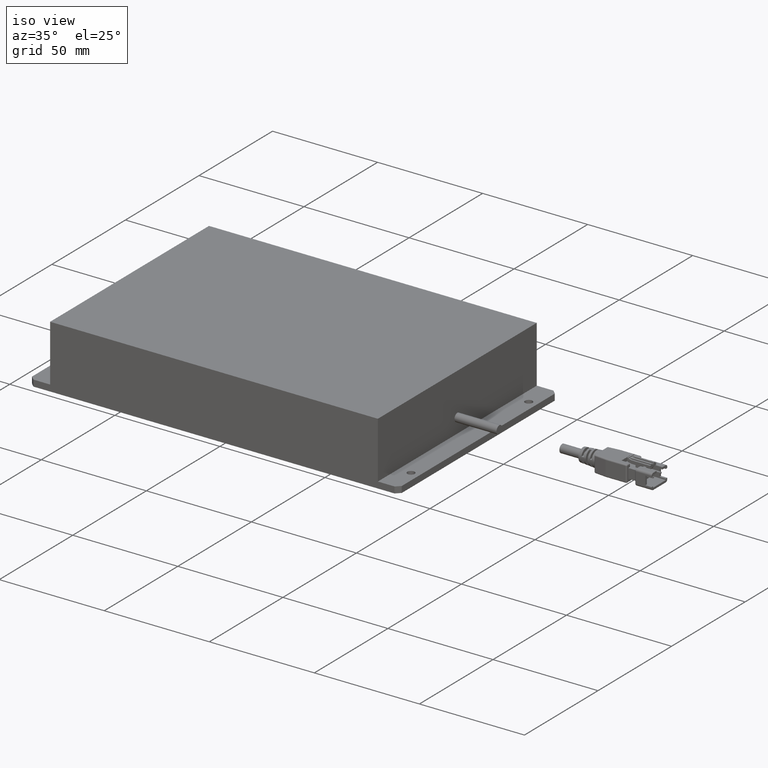
[diagram: clean part render]
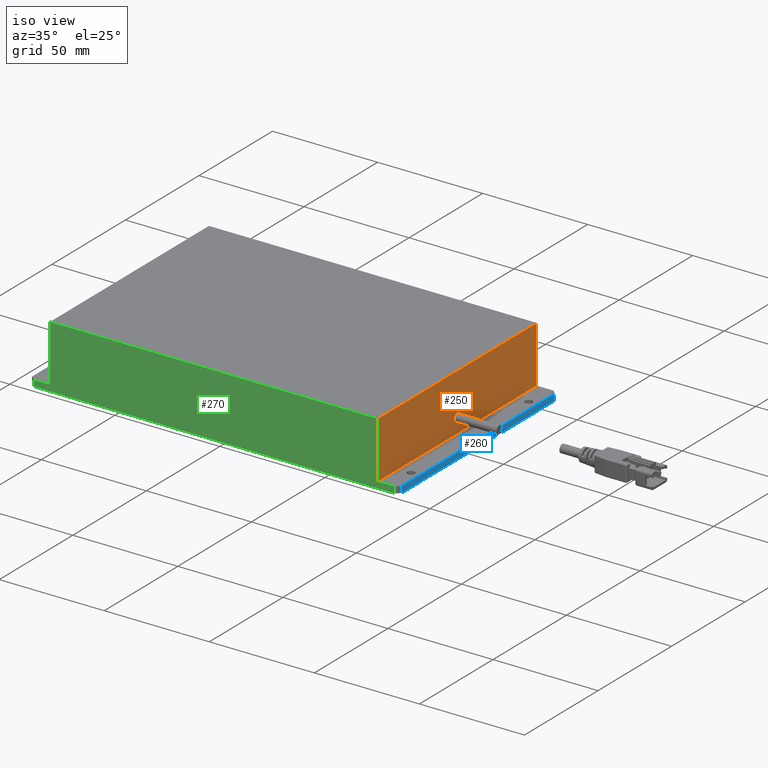
[diagram: same view with three faces highlighted in distinct colors, each labeled with its STEP entity id]
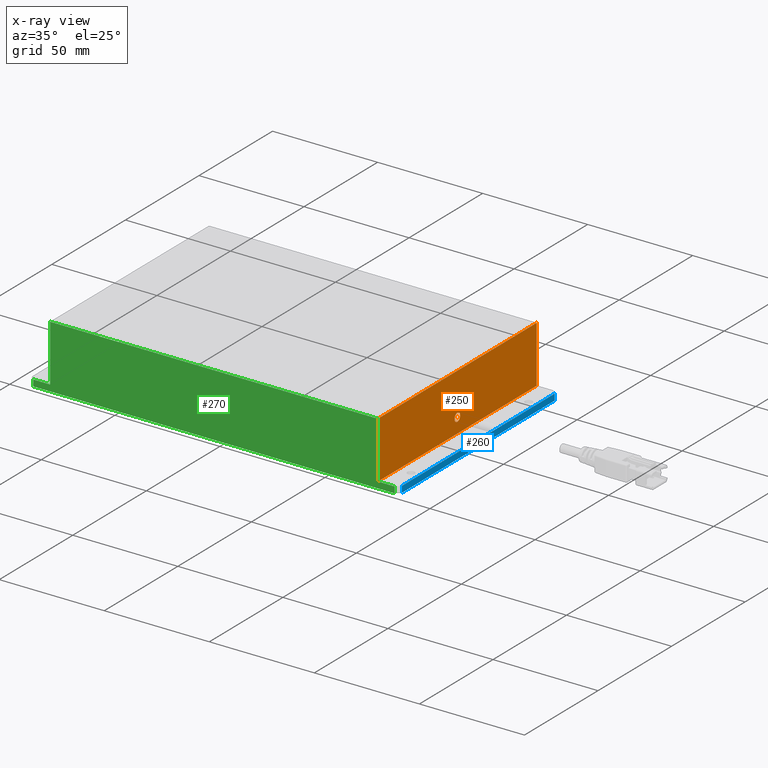
[diagram: x-ray of the same camera — body ghosted, the three highlighted faces saturated]
A machine part, iso view with three faces highlighted in distinct colors.
The next image is the same camera in x-ray (body ghosted, the three faces saturated) — at least one of them is partly hidden behind the body in this view.
Their STEP definitions:

[orange] entity #250 — the highlighted planar face has unit normal (-1, 0, 0).
#250=ADVANCED_FACE('0:8843',(#638,#639),#640,.F.);
#638=FACE_BOUND('',#1201,.T.);
#639=FACE_OUTER_BOUND('',#1202,.T.);
#640=PLANE('',#1203);
#1201=EDGE_LOOP('',(#2132));
#1202=EDGE_LOOP('',(#2133,#2134,#2135,#2136));
#1203=AXIS2_PLACEMENT_3D('',#2137,#2138,#2139);
#2132=ORIENTED_EDGE('',*,*,#3695,.F.);
#2133=ORIENTED_EDGE('',*,*,#3696,.F.);
#2134=ORIENTED_EDGE('',*,*,#3697,.F.);
#2135=ORIENTED_EDGE('',*,*,#3698,.T.);
#2136=ORIENTED_EDGE('',*,*,#3699,.T.);
#2137=CARTESIAN_POINT('',(0.078,0.054,0.003));
#2138=DIRECTION('',(-1.0,0.0,0.0));
#2139=DIRECTION('',(0.0,-1.0,0.0));
#3695=EDGE_CURVE('0:8897',#4309,#4309,#4310,.T.);
#3696=EDGE_CURVE('0:8918',#4311,#4312,#4313,.T.);
#3697=EDGE_CURVE('0:8906',#4314,#4311,#4315,.T.);
#3698=EDGE_CURVE('0:8915',#4314,#4316,#4317,.T.);
#3699=EDGE_CURVE('0:8909',#4316,#4312,#4318,.F.);
#4309=VERTEX_POINT('',#5208);
#4310=CIRCLE('',#5209,0.00195);
#4311=VERTEX_POINT('',#5210);
#4312=VERTEX_POINT('',#5211);
#4313=LINE('',#5212,#5213);
#4314=VERTEX_POINT('',#5214);
#4315=LINE('',#5215,#5216);
#4316=VERTEX_POINT('',#5217);
#4317=LINE('',#5218,#5219);
#4318=LINE('',#5220,#5221);
#5208=CARTESIAN_POINT('',(0.078,0.00195,0.01));
#5209=AXIS2_PLACEMENT_3D('',#6559,#6560,#6561);
#5210=CARTESIAN_POINT('',(0.078,0.054,0.003));
#5211=CARTESIAN_POINT('',(0.078,-0.054,0.003));
#5212=CARTESIAN_POINT('',(0.078,0.054,0.003));
#5213=VECTOR('',#6562,1.0);
#5214=CARTESIAN_POINT('',(0.078,0.054,0.03));
#5215=CARTESIAN_POINT('',(0.078,0.054,0.003));
#5216=VECTOR('',#6563,1.0);
#5217=CARTESIAN_POINT('',(0.078,-0.054,0.03));
#5218=CARTESIAN_POINT('',(0.078,0.0,0.03));
#5219=VECTOR('',#6564,1.0);
#5220=CARTESIAN_POINT('',(0.078,-0.054,0.003));
#5221=VECTOR('',#6565,1.0);
#6559=CARTESIAN_POINT('',(0.078,8.57224447675664E-19,0.01));
#6560=DIRECTION('',(1.0,0.0,-0.0));
#6561=DIRECTION('',(-0.0,1.0,0.0));
#6562=DIRECTION('',(0.0,-1.0,0.0));
#6563=DIRECTION('',(0.0,-0.0,-1.0));
#6564=DIRECTION('',(0.0,-1.0,0.0));
#6565=DIRECTION('',(0.0,0.0,1.0));

[blue] entity #260 — the highlighted planar face has unit normal (1, 0, 0).
#260=ADVANCED_FACE('0:8858',(#655),#656,.T.);
#655=FACE_OUTER_BOUND('',#1218,.T.);
#656=PLANE('',#1219);
#1218=EDGE_LOOP('',(#2168,#2169,#2170,#2171));
#1219=AXIS2_PLACEMENT_3D('',#2172,#2173,#2174);
#2168=ORIENTED_EDGE('',*,*,#3712,.T.);
#2169=ORIENTED_EDGE('',*,*,#3713,.T.);
#2170=ORIENTED_EDGE('',*,*,#3714,.F.);
#2171=ORIENTED_EDGE('',*,*,#3715,.T.);
#2172=CARTESIAN_POINT('',(0.088,0.054,0.0));
#2173=DIRECTION('',(1.0,0.0,-0.0));
#2174=DIRECTION('',(-0.0,0.0,-1.0));
#3712=EDGE_CURVE('0:9005',#4336,#4337,#4338,.F.);
#3713=EDGE_CURVE('0:8933',#4337,#4339,#4340,.T.);
#3714=EDGE_CURVE('0:8993',#4341,#4339,#4342,.F.);
#3715=EDGE_CURVE('0:8939',#4341,#4336,#4343,.T.);
#4336=VERTEX_POINT('',#5245);
#4337=VERTEX_POINT('',#5246);
#4338=LINE('',#5247,#5248);
#4339=VERTEX_POINT('',#5249);
#4340=LINE('',#5250,#5251);
#4341=VERTEX_POINT('',#5252);
#4342=LINE('',#5253,#5254);
#4343=LINE('',#5255,#5256);
#5245=CARTESIAN_POINT('',(0.088,-0.052,0.0));
#5246=CARTESIAN_POINT('',(0.088,0.052,0.0));
#5247=CARTESIAN_POINT('',(0.088,0.054,0.0));
#5248=VECTOR('',#6575,1.0);
#5249=CARTESIAN_POINT('',(0.088,0.052,0.003));
#5250=CARTESIAN_POINT('',(0.088,0.052,0.0));
#5251=VECTOR('',#6576,1.0);
#5252=CARTESIAN_POINT('',(0.088,-0.052,0.003));
#5253=CARTESIAN_POINT('',(0.088,0.054,0.003));
#5254=VECTOR('',#6577,1.0);
#5255=CARTESIAN_POINT('',(0.088,-0.052,0.0));
#5256=VECTOR('',#6578,1.0);
#6575=DIRECTION('',(0.0,-1.0,0.0));
#6576=DIRECTION('',(0.0,0.0,1.0));
#6577=DIRECTION('',(0.0,-1.0,0.0));
#6578=DIRECTION('',(0.0,0.0,-1.0));

[green] entity #270 — the highlighted planar face has unit normal (0, -1, 0).
#270=ADVANCED_FACE('0:8867',(#676),#677,.T.);
#676=FACE_OUTER_BOUND('',#1239,.T.);
#677=PLANE('',#1240);
#1239=EDGE_LOOP('',(#2220,#2221,#2222,#2223,#2224,#2225,#2226,#2227));
#1240=AXIS2_PLACEMENT_3D('',#2228,#2229,#2230);
#2220=ORIENTED_EDGE('',*,*,#3724,.T.);
#2221=ORIENTED_EDGE('',*,*,#3743,.T.);
#2222=ORIENTED_EDGE('',*,*,#3744,.F.);
#2223=ORIENTED_EDGE('',*,*,#3699,.F.);
#2224=ORIENTED_EDGE('',*,*,#3710,.T.);
#2225=ORIENTED_EDGE('',*,*,#3702,.T.);
#2226=ORIENTED_EDGE('',*,*,#3731,.F.);
#2227=ORIENTED_EDGE('',*,*,#3740,.T.);
#2228=CARTESIAN_POINT('',(0.088,-0.054,0.0));
#2229=DIRECTION('',(0.0,-1.0,0.0));
#2230=DIRECTION('',(0.0,0.0,-1.0));
#3699=EDGE_CURVE('0:8909',#4316,#4312,#4318,.F.);
#3702=EDGE_CURVE('0:8900',#4323,#4320,#4324,.T.);
#3710=EDGE_CURVE('0:8975',#4316,#4323,#4334,.T.);
#3724=EDGE_CURVE('0:8996',#4359,#4357,#4360,.F.);
#3731=EDGE_CURVE('0:8972',#4371,#4320,#4372,.F.);
#3740=EDGE_CURVE('0:8951',#4371,#4359,#4384,.T.);
#3743=EDGE_CURVE('0:8945',#4357,#4387,#4388,.T.);
#3744=EDGE_CURVE('0:8978',#4312,#4387,#4389,.F.);
#4312=VERTEX_POINT('',#5211);
#4316=VERTEX_POINT('',#5217);
#4318=LINE('',#5220,#5221);
#4320=VERTEX_POINT('',#5223);
#4323=VERTEX_POINT('',#5227);
#4324=LINE('',#5228,#5229);
#4334=LINE('',#5242,#5243);
#4357=VERTEX_POINT('',#5272);
#4359=VERTEX_POINT('',#5275);
#4360=LINE('',#5276,#5277);
#4371=VERTEX_POINT('',#5291);
#4372=LINE('',#5292,#5293);
#4384=LINE('',#5311,#5312);
#4387=VERTEX_POINT('',#5316);
#4388=LINE('',#5317,#5318);
#4389=LINE('',#5319,#5320);
#5211=CARTESIAN_POINT('',(0.078,-0.054,0.003));
#5217=CARTESIAN_POINT('',(0.078,-0.054,0.03));
#5220=CARTESIAN_POINT('',(0.078,-0.054,0.003));
#5221=VECTOR('',#6565,1.0);
#5223=CARTESIAN_POINT('',(-0.078,-0.054,0.003));
#5227=CARTESIAN_POINT('',(-0.078,-0.054,0.03));
#5228=CARTESIAN_POINT('',(-0.078,-0.054,0.003));
#5229=VECTOR('',#6567,1.0);
#5242=CARTESIAN_POINT('',(0.088,-0.054,0.03));
#5243=VECTOR('',#6574,1.0);
#5272=CARTESIAN_POINT('',(0.086,-0.054,0.0));
#5275=CARTESIAN_POINT('',(-0.086,-0.054,0.0));
#5276=CARTESIAN_POINT('',(0.088,-0.054,0.0));
#5277=VECTOR('',#6594,1.0);
#5291=CARTESIAN_POINT('',(-0.086,-0.054,0.003));
#5292=CARTESIAN_POINT('',(0.088,-0.054,0.003));
#5293=VECTOR('',#6604,1.0);
#5311=CARTESIAN_POINT('',(-0.086,-0.054,0.0));
#5312=VECTOR('',#6611,1.0);
#5316=CARTESIAN_POINT('',(0.086,-0.054,0.003));
#5317=CARTESIAN_POINT('',(0.086,-0.054,0.0));
#5318=VECTOR('',#6613,1.0);
#5319=CARTESIAN_POINT('',(0.088,-0.054,0.003));
#5320=VECTOR('',#6614,1.0);
#6565=DIRECTION('',(0.0,0.0,1.0));
#6567=DIRECTION('',(0.0,0.0,-1.0));
#6574=DIRECTION('',(-1.0,0.0,0.0));
#6594=DIRECTION('',(-1.0,0.0,0.0));
#6604=DIRECTION('',(-1.0,0.0,0.0));
#6611=DIRECTION('',(0.0,0.0,-1.0));
#6613=DIRECTION('',(0.0,0.0,1.0));
#6614=DIRECTION('',(-1.0,0.0,0.0));